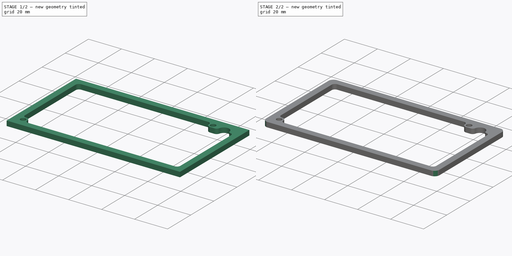
[diagram: build sequence overview — one tinted view per stage of 2, left to right]
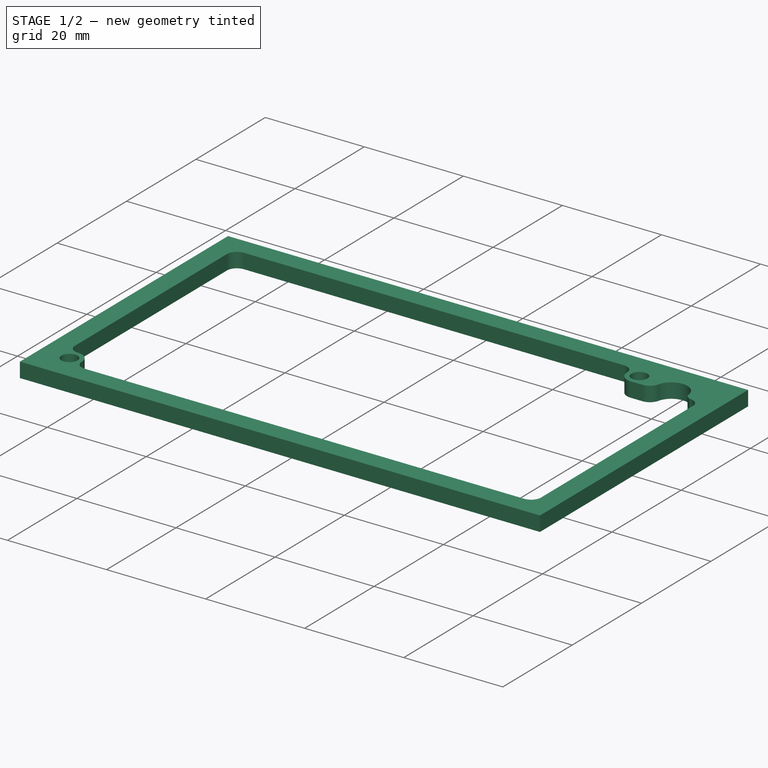
[diagram: stage 1 of 2 — iso view after this stage's code; geometry added in this stage tinted green]
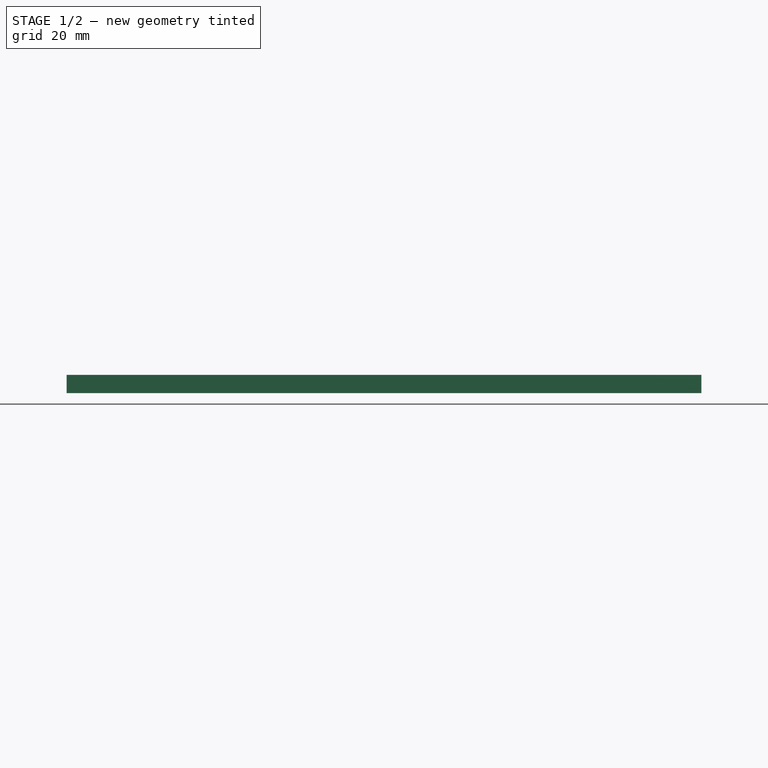
[diagram: stage 1 of 2 — front view after this stage's code; geometry added in this stage tinted green]
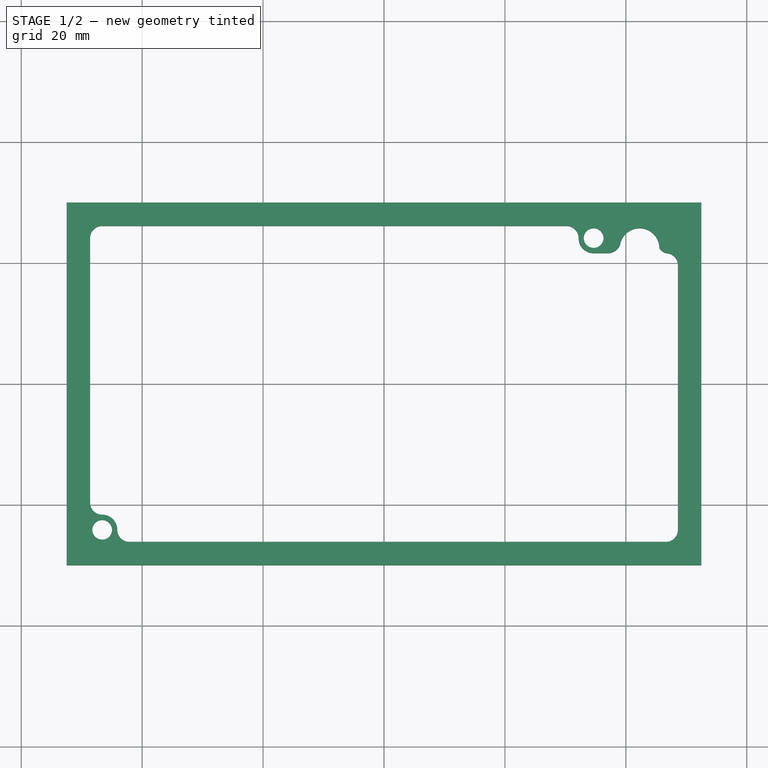
[diagram: stage 1 of 2 — top view after this stage's code; geometry added in this stage tinted green]
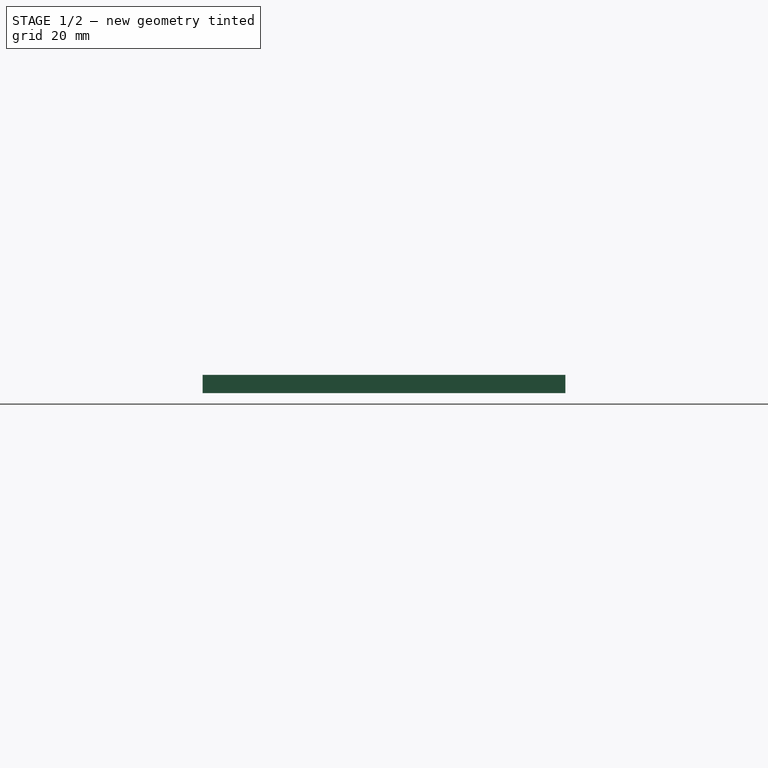
[diagram: stage 1 of 2 — right view after this stage's code; geometry added in this stage tinted green]
FCSTD DOCUMENT  (FreeCAD 0.14R3310 (Git))
Label: 24. SUPLEMENTO RAMPS
License: CC-BY 3.0
LicenseURL: http://creativecommons.org/licenses/by/3.0/
objects: Sketcher::SketchObject×1, PartDesign::Pad×1, PartDesign::Fillet×1
note: 4 computed .brp shape members not serialized (recipe doc carries the construction recipe); baked Part::Feature solids carry a one-line shape summary decoded from their .brp

FEATURE [Sketcher::SketchObject] Sketch
  sketch-geometry (28):
    g0: LineSegment StartX=-52.5 StartY=30 StartZ=0 EndX=52.5 EndY=30 EndZ=0
    g1: LineSegment StartX=52.5 StartY=30 StartZ=0 EndX=52.5 EndY=-30 EndZ=0
    g2: LineSegment StartX=52.5 StartY=-30 StartZ=0 EndX=-52.5 EndY=-30 EndZ=0
    g3: LineSegment StartX=-52.5 StartY=-30 StartZ=0 EndX=-52.5 EndY=30 EndZ=0
    g4: LineSegment [constr] StartX=-48.605 StartY=26.13 StartZ=0 EndX=48.605 EndY=26.13 EndZ=0
    g5: LineSegment [constr] StartX=48.605 StartY=26.13 StartZ=0 EndX=48.605 EndY=-26.13 EndZ=0
    g6: LineSegment [constr] StartX=48.605 StartY=-26.13 StartZ=0 EndX=-48.605 EndY=-26.13 EndZ=0
    g7: LineSegment [constr] StartX=-48.605 StartY=-26.13 StartZ=0 EndX=-48.605 EndY=26.13 EndZ=0
    g8: Circle CenterX=-46.605 CenterY=-24.13 CenterZ=0 NormalX=0 NormalY=0 NormalZ=1 Radius=1.63
    g9: ArcOfCircle CenterX=-46.605 CenterY=-24.13 CenterZ=0 NormalX=0 NormalY=0 NormalZ=1 Radius=2.5 StartAngle=6.28319 EndAngle=7.85398
    g10: ArcOfCircle CenterX=-42.105 CenterY=-24.13 CenterZ=0 NormalX=0 NormalY=0 NormalZ=1 Radius=2 StartAngle=3.14159 EndAngle=4.71239
    g11: ArcOfCircle CenterX=-46.605 CenterY=-19.63 CenterZ=0 NormalX=0 NormalY=0 NormalZ=1 Radius=2 StartAngle=3.14159 EndAngle=4.71239
    g12: ArcOfCircle CenterX=-46.605 CenterY=24.13 CenterZ=0 NormalX=0 NormalY=0 NormalZ=1 Radius=2 StartAngle=1.5708 EndAngle=3.14159
    g13: LineSegment StartX=-48.605 StartY=24.13 StartZ=0 EndX=-48.605 EndY=-19.63 EndZ=0
    g14: ArcOfCircle CenterX=46.605 CenterY=-24.13 CenterZ=0 NormalX=0 NormalY=0 NormalZ=1 Radius=2 StartAngle=4.71239 EndAngle=6.28319
    g15: LineSegment StartX=-42.105 StartY=-26.13 StartZ=0 EndX=46.605 EndY=-26.13 EndZ=0
    g16: LineSegment StartX=48.605 StartY=-24.13 StartZ=0 EndX=48.605 EndY=19.63 EndZ=0
    g17: ArcOfCircle CenterX=46.605 CenterY=19.63 CenterZ=0 NormalX=0 NormalY=0 NormalZ=1 Radius=2 StartAngle=6.28319 EndAngle=7.85398
    g18: LineSegment StartX=-46.605 StartY=26.13 StartZ=0 EndX=30.175 EndY=26.13 EndZ=0
    g19: ArcOfCircle CenterX=30.175 CenterY=24.13 CenterZ=0 NormalX=0 NormalY=0 NormalZ=1 Radius=2 StartAngle=6.28319 EndAngle=7.85398
    g20: Circle CenterX=34.67 CenterY=24.13 CenterZ=0 NormalX=0 NormalY=0 NormalZ=1 Radius=1.63
    g21: ArcOfCircle CenterX=34.67 CenterY=24.13 CenterZ=0 NormalX=0 NormalY=0 NormalZ=1 Radius=2.495 StartAngle=3.14159 EndAngle=4.71239
    g22: LineSegment StartX=34.67 StartY=21.635 StartZ=0 EndX=37.07 EndY=21.635 EndZ=0
    g23: LineSegment [constr] StartX=46.605 StartY=21.63 StartZ=0 EndX=46.605 EndY=19.63 EndZ=0
    g24: ArcOfCircle CenterX=42.2755 CenterY=22.5 CenterZ=0 NormalX=0 NormalY=0 NormalZ=1 Radius=3.25 StartAngle=0 EndAngle=2.90865
    g25: ArcOfCircle CenterX=37.07 CenterY=23.735 CenterZ=0 NormalX=0 NormalY=0 NormalZ=1 Radius=2.1 StartAngle=4.71239 EndAngle=6.05024
    g26: LineSegment [constr] StartX=42.2755 StartY=22.5 StartZ=0 EndX=45.5255 EndY=22.5 EndZ=0
    g27: ArcOfCircle CenterX=47.3091 CenterY=23.6084 CenterZ=0 NormalX=0 NormalY=0 NormalZ=1 Radius=2.1 StartAngle=3.69763 EndAngle=4.37046
  constraints (89):
    c: Coincident(g0,g1)
    c: Coincident(g1,g2)
    c: Coincident(g2,g3)
    c: Coincident(g3,g0)
    c: Horizontal(g0)
    c: Horizontal(g2)
    c: Vertical(g1)
    c: Vertical(g3)
    c: Symmetric(g1,g0,g-1)
    c: Distance(g0) = 105
    c: Distance(g1) = 60
    c: Coincident(g4,g5)
    c: Coincident(g5,g6)
    c: Coincident(g6,g7)
    c: Coincident(g7,g4)
    c: Horizontal(g4)
    c: Horizontal(g6)
    c: Vertical(g5)
    c: Vertical(g7)
    c: Symmetric(g4,g5,g-1)
    c: Distance(g5) = 52.26
    c: Distance(g4) = 97.21
    c: Distance(g8,g6) = 2
    c: Distance(g8,g7) = 2
    c: Radius(g8) = 1.63
    c: Coincident(g9,g8)
    c: Radius(g9) = 2.5
    c: Coincident(g10,g9)
    c: Radius(g10) = 2
    c: Coincident(g11,g9)
    c: Radius(g11) = 2
    c: Tangent(g9,g10)
    c: Tangent(g9,g11)
    c: PointOnObject(g11,g7)
    c: Tangent(g11,g7)
    c: PointOnObject(g10,g6)
    c: Tangent(g10,g6)
    c: Tangent(g12,g4)
    c: Tangent(g12,g7)
    c: Radius(g12) = 2
    c: Vertical(g13)
    c: Coincident(g13,g11)
    c: Coincident(g13,g12)
    c: Radius(g14) = 2
    c: PointOnObject(g14,g6)
    c: Tangent(g14,g6)
    c: Horizontal(g15)
    c: Coincident(g15,g10)
    c: Coincident(g15,g14)
    c: Vertical(g16)
    c: Distance(g16) = 43.76
    c: Coincident(g16,g14)
    c: Radius(g17) = 2
    c: Coincident(g17,g16)
    c: Tangent(g17,g5)
    c: Distance(g18) = 76.78
    c: Coincident(g12,g18)
    c: Horizontal(g18)
    c: Radius(g19) = 2
    c: Coincident(g19,g18)
    c: Tangent(g19,g4)
    c: Radius(g20) = 1.63
    c: Distance(g20,g0) = 5.87
    c: Distance(g20,g1) = 17.83
    c: Coincident(g21,g20)
    c: Coincident(g21,g19)
    c: Tangent(g19,g21)
    c: Horizontal(g22)
    c: Coincident(g22,g21)
    c: Distance(g22) = 2.4
    c: Vertical(g23)
    c: Coincident(g23,g17)
    c: Coincident(g23,g17)
    c: Tangent(g21,g22)
    c: Coincident(g22,g25)
    c: Tangent(g25,g24)
    c: Coincident(g26,g24)
    c: Horizontal(g26)
    c: Tangent(g26,g20)
    c: Coincident(g24,g25)
    c: Radius(g25) = 2.1
    c: Radius(g24) = 3.25
    c: Tangent(g25,g22)
    c: PointOnObject(g16,g5)
    c: Coincident(g24,g26)
    c: Coincident(g27,g24)
    c: Coincident(g27,g17)
    c: Radius(g27) = 2.1
    c: Tangent(g14,g5)
FEATURE [PartDesign::Pad] Pad
  Length = 3
  Length2 = 100
  Sketch = -> Sketch
  Type = 0
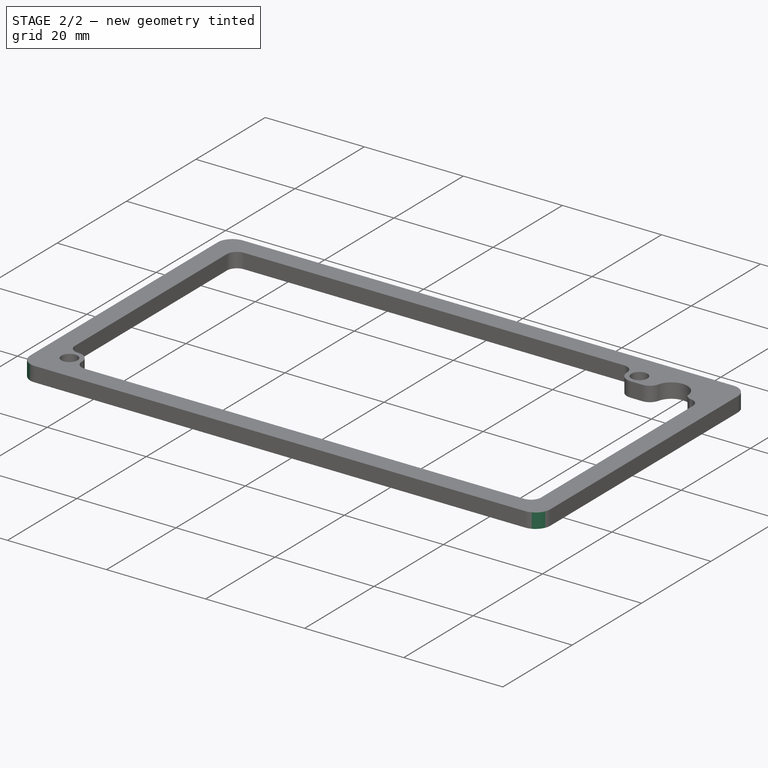
[diagram: stage 2 of 2 — iso view after this stage's code; geometry added in this stage tinted green]
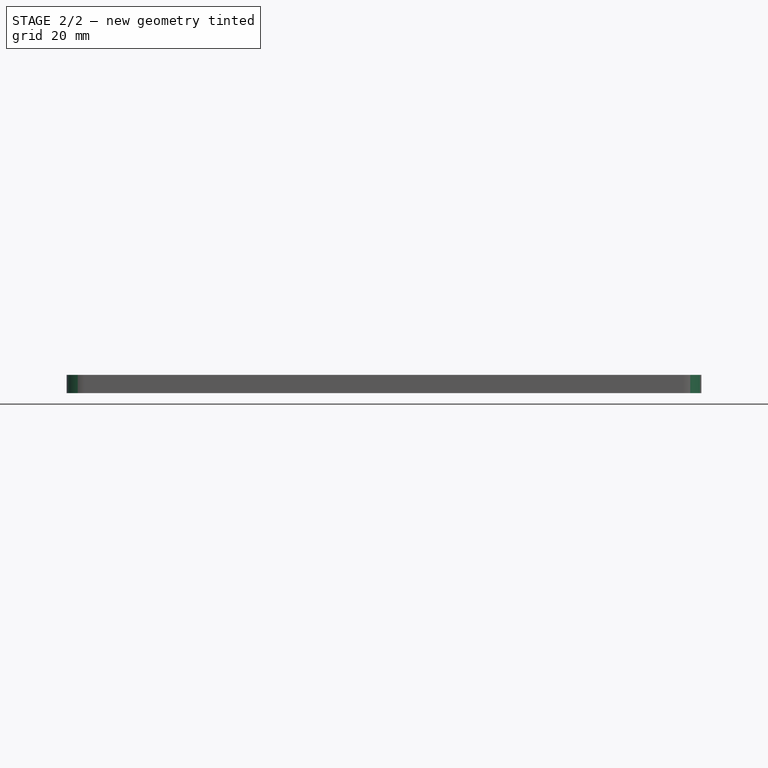
[diagram: stage 2 of 2 — front view after this stage's code; geometry added in this stage tinted green]
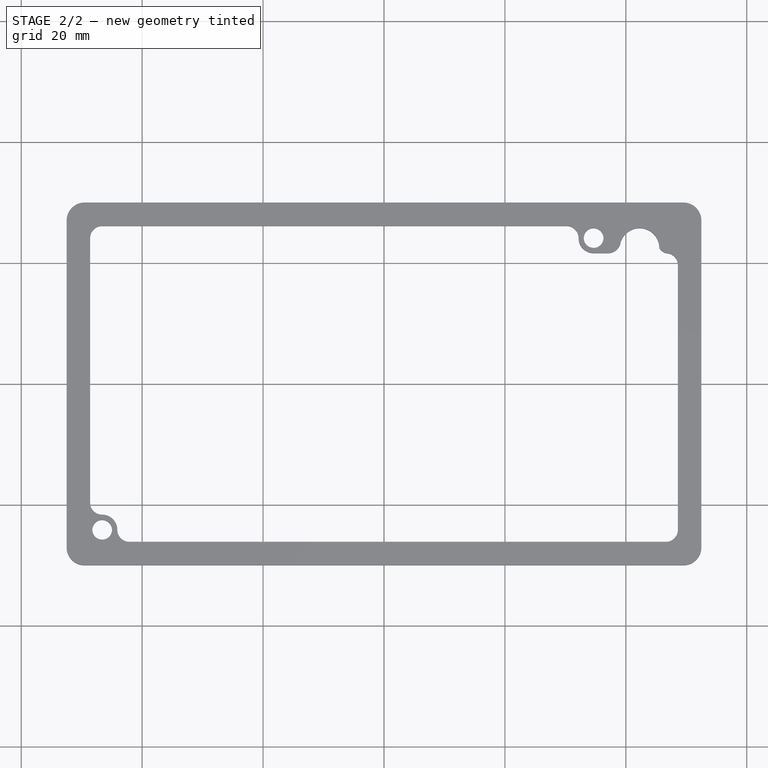
[diagram: stage 2 of 2 — top view after this stage's code; geometry added in this stage tinted green]
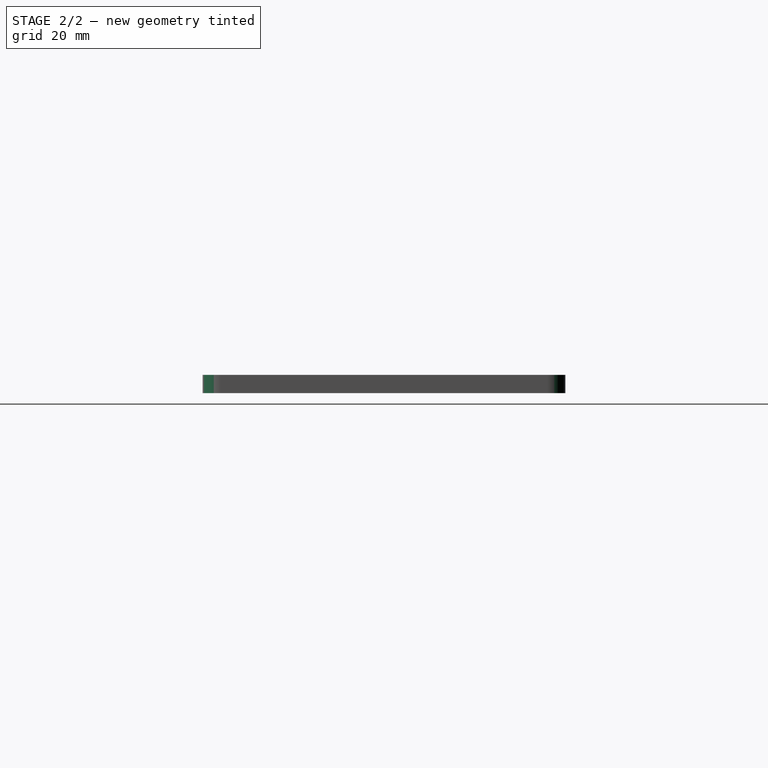
[diagram: stage 2 of 2 — right view after this stage's code; geometry added in this stage tinted green]
FEATURE [PartDesign::Fillet] Fillet
  Base = -> Pad [Edge5,Edge1,Edge2,Edge8]
  Radius = 3
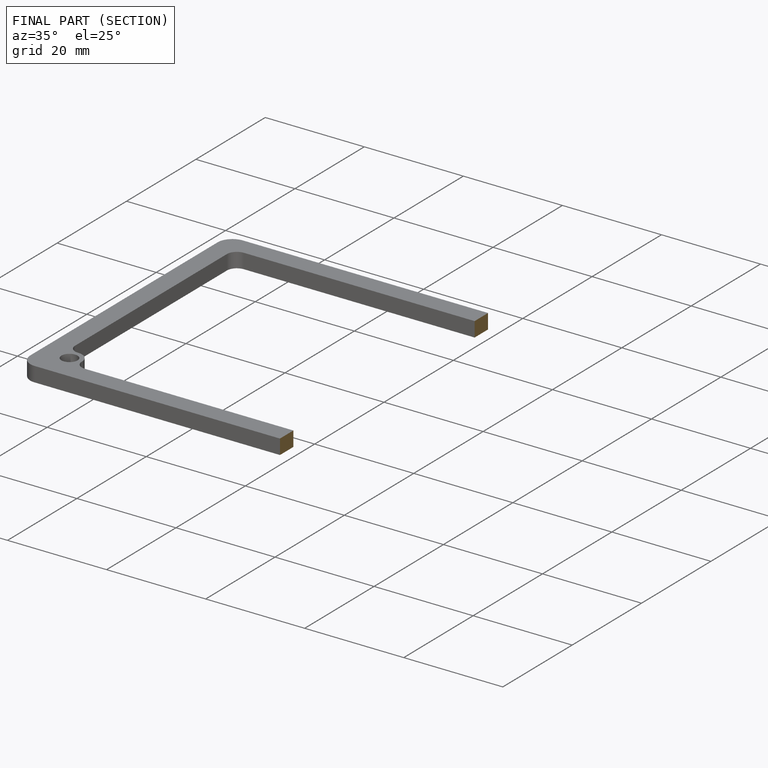
[diagram: finished part — half-section view (interior)]
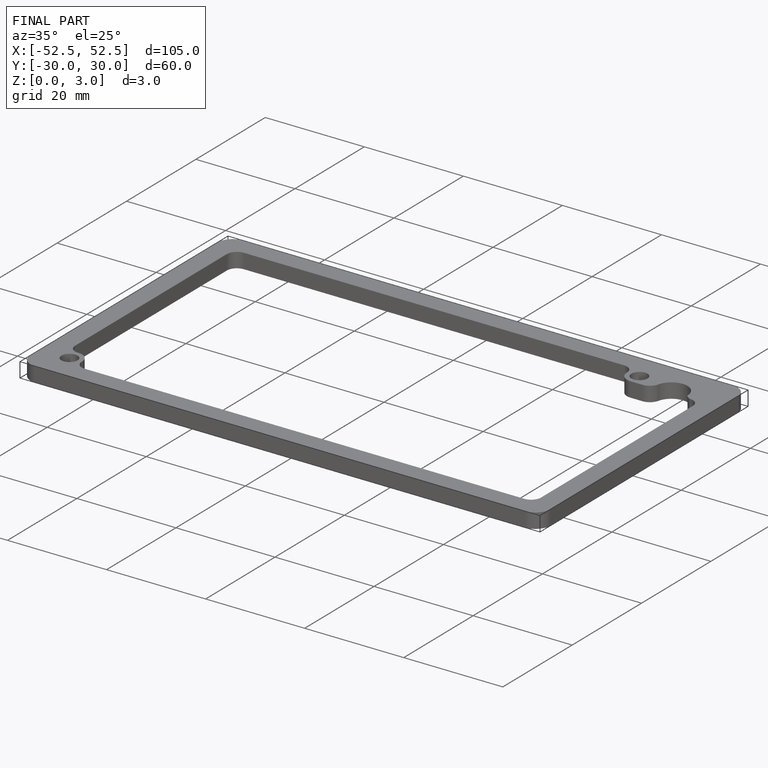
[diagram: finished part — iso view with bounding-box wireframe]
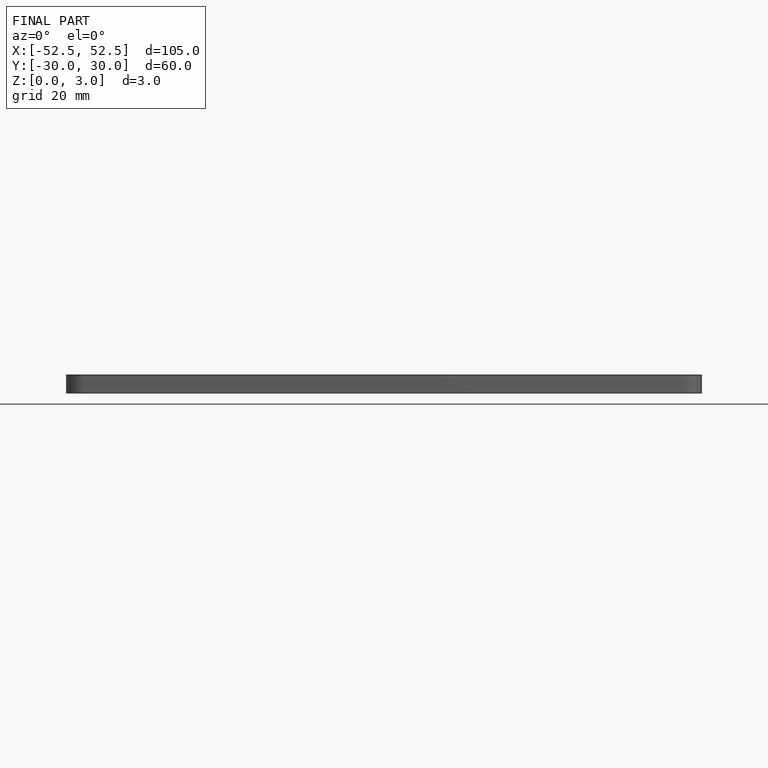
[diagram: finished part — front view with bounding-box wireframe]
